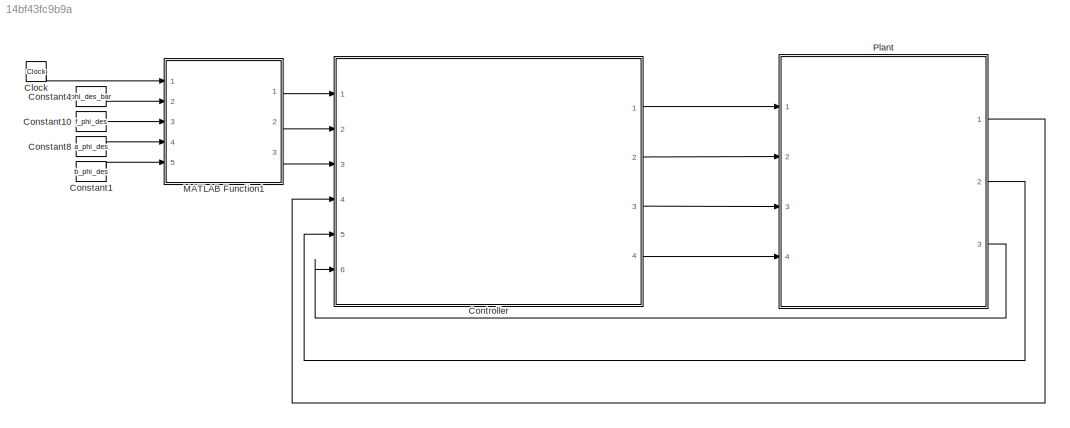
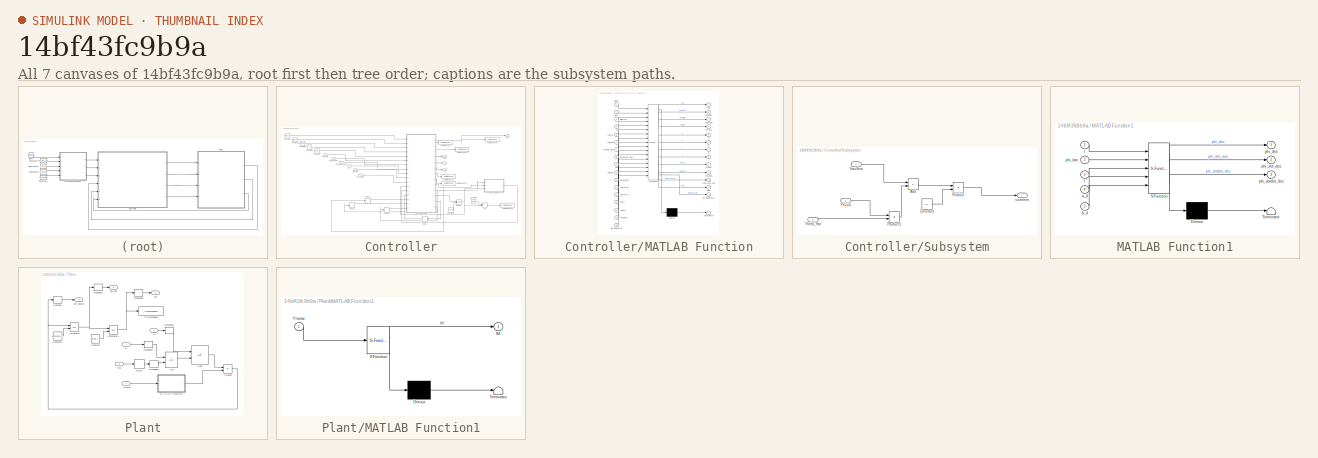
[diagram: thumbnail index - all 7 canvases of the model, root first then tree order]
MODEL slx_14bf43fc9b9a
KIND model
CONFIG AbsTol = auto
CONFIG EnableMultiTasking = off
CONFIG FixedStep = auto
CONFIG MaxStep = auto
CONFIG MinStep = auto
CONFIG RelTol = 1e-3
CONFIG SampleTimeConstraint = Unconstrained
CONFIG Solver = VariableStepAuto
CONFIG SolverName = VariableStepAuto
CONFIG StartTime = 0.0
CONFIG StopTime = 10.0
BLOCK [Clock] Clock
BLOCK [Constant] Constant1
  Value = b_phi_des
BLOCK [Constant] Constant10
  Value = f_phi_des
BLOCK [Constant] Constant4
  Value = phi_des_bar
BLOCK [Constant] Constant8
  Value = a_phi_des
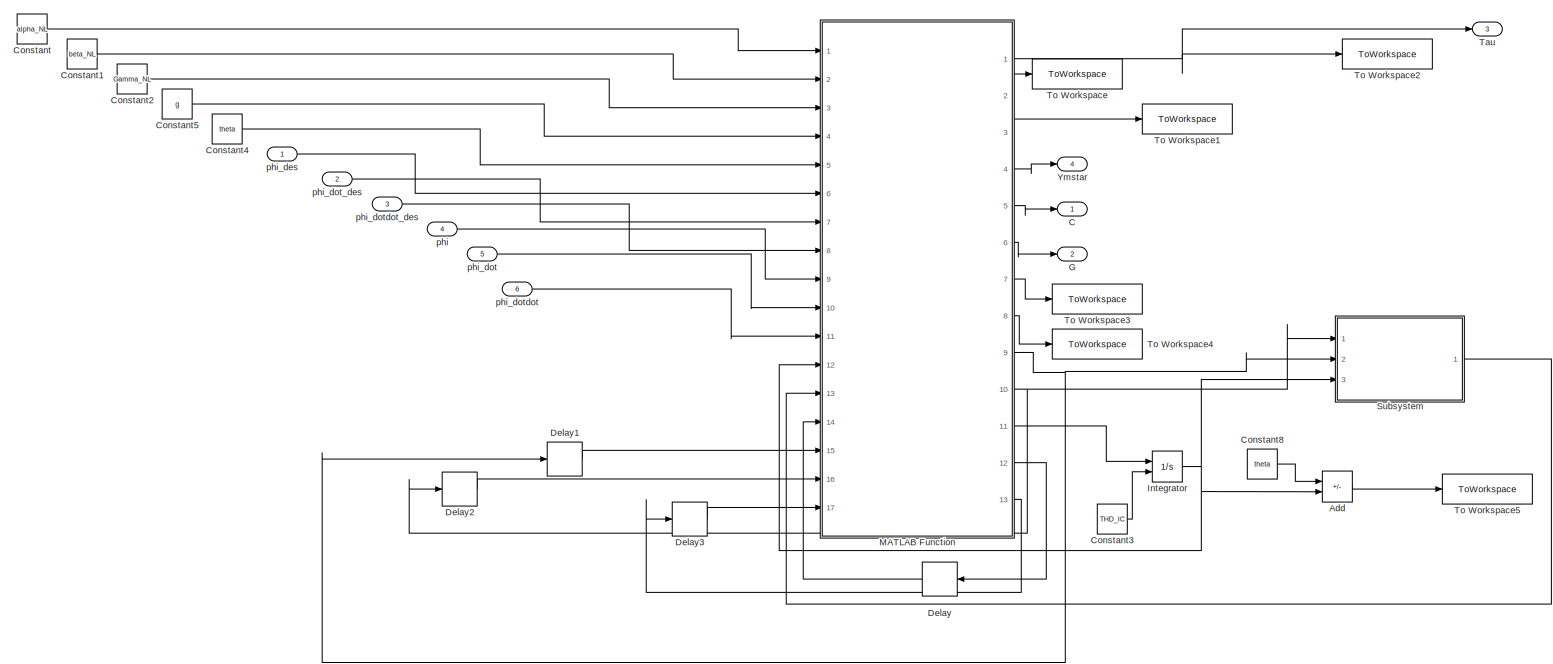
[diagram: Controller - part 1/1, most of the canvas]
BLOCK [SubSystem] Controller
  Ports = [6, 4]
  RequestExecContextInheritance = off
BLOCK [Sum] Controller/Add
  IconShape = rectangular
  Inputs = +-
  Ports = [2, 1]
BLOCK [Outport] Controller/C
BLOCK [Constant] Controller/Constant
  Value = alpha_NL
BLOCK [Constant] Controller/Constant1
  Value = beta_NL
BLOCK [Constant] Controller/Constant2
  Value = Gamma_NL
BLOCK [Constant] Controller/Constant3
  Value = THD_IC
BLOCK [Constant] Controller/Constant4
  Value = theta
BLOCK [Constant] Controller/Constant5
  Value = g
BLOCK [Constant] Controller/Constant8
  Value = theta
BLOCK [Delay] Controller/Delay
  DelayLength = 1
  InitialCondition = zeros(2,5,10)
  InputPortMap = u0
  Ports = [1, 1]
BLOCK [Delay] Controller/Delay1
  DelayLength = 1
  InitialCondition = zeros(5,5)
  InputPortMap = u0
  Ports = [1, 1]
BLOCK [Delay] Controller/Delay2
  DelayLength = 1
  InitialCondition = zeros(5,1)
  InputPortMap = u0
  Ports = [1, 1]
BLOCK [Delay] Controller/Delay3
  DelayLength = 1
  InitialCondition = 0
  InputPortMap = u0
  Ports = [1, 1]
BLOCK [Outport] Controller/G
  Port = 2
BLOCK [Integrator] Controller/Integrator
  InitialConditionSource = external
  Ports = [2, 1]
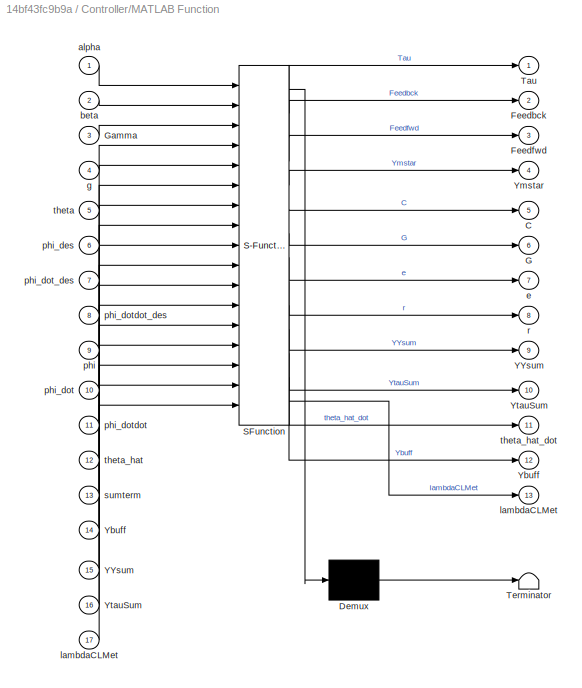
BLOCK [SubSystem] Controller/MATLAB Function
  ErrorFcn = Stateflow.Translate.translate
  PermitHierarchicalResolution = ExplicitOnly
  Ports = [17, 13]
  RequestExecContextInheritance = off
  SFBlockType = MATLAB Function
  TreatAsAtomicUnit = on
BLOCK [Demux] Controller/MATLAB Function/ Demux 
  Outputs = 1
  Ports = [1, 1]
BLOCK [S-Function] Controller/MATLAB Function/ SFunction 
  EnableBusSupport = on
  FunctionName = sf_sfun
  PortCounts = [17 14]
  Ports = [17, 14]
  SFcnIsStateOwnerBlock = off
  SFunctionDeploymentMode = off
  Tag = Stateflow S-Function 2
BLOCK [Terminator] Controller/MATLAB Function/ Terminator 
BLOCK [Outport] Controller/MATLAB Function/C
  Port = 5
BLOCK [Outport] Controller/MATLAB Function/Feedbck
  Port = 2
BLOCK [Outport] Controller/MATLAB Function/Feedfwd
  Port = 3
BLOCK [Outport] Controller/MATLAB Function/G
  Port = 6
BLOCK [Inport] Controller/MATLAB Function/Gamma
  Port = 3
BLOCK [Outport] Controller/MATLAB Function/Tau
BLOCK [Outport] Controller/MATLAB Function/YYsum
  Port = 9
BLOCK [Inport] Controller/MATLAB Function/YYsum 
  Port = 15
BLOCK [Outport] Controller/MATLAB Function/Ybuff
  Port = 12
BLOCK [Inport] Controller/MATLAB Function/Ybuff 
  Port = 14
BLOCK [Outport] Controller/MATLAB Function/Ymstar
  Port = 4
BLOCK [Outport] Controller/MATLAB Function/YtauSum
  Port = 10
BLOCK [Inport] Controller/MATLAB Function/YtauSum 
  Port = 16
BLOCK [Inport] Controller/MATLAB Function/alpha
BLOCK [Inport] Controller/MATLAB Function/beta
  Port = 2
BLOCK [Outport] Controller/MATLAB Function/e
  Port = 7
BLOCK [Inport] Controller/MATLAB Function/g
  Port = 4
BLOCK [Outport] Controller/MATLAB Function/lambdaCLMet
  Port = 13
BLOCK [Inport] Controller/MATLAB Function/lambdaCLMet 
  Port = 17
BLOCK [Inport] Controller/MATLAB Function/phi
  Port = 9
BLOCK [Inport] Controller/MATLAB Function/phi_des
  Port = 6
BLOCK [Inport] Controller/MATLAB Function/phi_dot
  Port = 10
BLOCK [Inport] Controller/MATLAB Function/phi_dot_des
  Port = 7
BLOCK [Inport] Controller/MATLAB Function/phi_dotdot
  Port = 11
BLOCK [Inport] Controller/MATLAB Function/phi_dotdot_des
  Port = 8
BLOCK [Outport] Controller/MATLAB Function/r
  Port = 8
BLOCK [Inport] Controller/MATLAB Function/sumterm
  Port = 13
BLOCK [Inport] Controller/MATLAB Function/theta
  Port = 5
BLOCK [Inport] Controller/MATLAB Function/theta_hat
  Port = 12
BLOCK [Outport] Controller/MATLAB Function/theta_hat_dot
  Port = 11
BLOCK [SubSystem] Controller/Subsystem
  Ports = [3, 1]
  RequestExecContextInheritance = off
BLOCK [Sum] Controller/Subsystem/Add
  IconShape = rectangular
  Inputs = +-
  Ports = [2, 1]
BLOCK [Constant] Controller/Subsystem/Constant
  Value = 0.1
BLOCK [Product] Controller/Subsystem/Product
  Multiplication = Matrix(*)
  Ports = [2, 1]
BLOCK [Product] Controller/Subsystem/Product1
  Multiplication = Matrix(*)
  Ports = [2, 1]
BLOCK [Inport] Controller/Subsystem/Theta_Hat
  Port = 3
  PortDimensions = [5,1]
BLOCK [Inport] Controller/Subsystem/YYsum
  Port = 2
  PortDimensions = [5,5]
BLOCK [Inport] Controller/Subsystem/YtauSum
BLOCK [Outport] Controller/Subsystem/sumterm
BLOCK [Outport] Controller/Tau
  Port = 3
BLOCK [ToWorkspace] Controller/To Workspace
  FixptAsFi = on
  MaxDataPoints = inf
  Ports = [1]
  SampleTime = -1
  SaveFormat = Timeseries
  VariableName = Feedbck
BLOCK [ToWorkspace] Controller/To Workspace1
  FixptAsFi = on
  MaxDataPoints = inf
  Ports = [1]
  SampleTime = -1
  SaveFormat = Timeseries
  VariableName = Feedfwd
BLOCK [ToWorkspace] Controller/To Workspace2
  FixptAsFi = on
  MaxDataPoints = inf
  Ports = [1]
  SampleTime = -1
  SaveFormat = Timeseries
  VariableName = Tau
BLOCK [ToWorkspace] Controller/To Workspace3
  FixptAsFi = on
  MaxDataPoints = inf
  Ports = [1]
  SampleTime = -1
  SaveFormat = Timeseries
  VariableName = e_nl
BLOCK [ToWorkspace] Controller/To Workspace4
  FixptAsFi = on
  MaxDataPoints = inf
  Ports = [1]
  SampleTime = -1
  SaveFormat = Timeseries
  VariableName = r_nl
BLOCK [ToWorkspace] Controller/To Workspace5
  FixptAsFi = on
  MaxDataPoints = inf
  Ports = [1]
  SampleTime = -1
  SaveFormat = Timeseries
  VariableName = theta_tilde
BLOCK [Outport] Controller/Ymstar
  Port = 4
BLOCK [Inport] Controller/phi
  Port = 4
BLOCK [Inport] Controller/phi_des
BLOCK [Inport] Controller/phi_dot
  Port = 5
BLOCK [Inport] Controller/phi_dot_des
  Port = 2
BLOCK [Inport] Controller/phi_dotdot
  Port = 6
BLOCK [Inport] Controller/phi_dotdot_des
  Port = 3
BLOCK [SubSystem] MATLAB Function1
  ErrorFcn = Stateflow.Translate.translate
  PermitHierarchicalResolution = ExplicitOnly
  Ports = [5, 3]
  RequestExecContextInheritance = off
  SFBlockType = MATLAB Function
  TreatAsAtomicUnit = on
BLOCK [Demux] MATLAB Function1/ Demux 
  Outputs = 1
  Ports = [1, 1]
BLOCK [S-Function] MATLAB Function1/ SFunction 
  EnableBusSupport = on
  FunctionName = sf_sfun
  PortCounts = [5 4]
  Ports = [5, 4]
  SFcnIsStateOwnerBlock = off
  SFunctionDeploymentMode = off
  Tag = Stateflow S-Function 3
BLOCK [Terminator] MATLAB Function1/ Terminator 
BLOCK [Inport] MATLAB Function1/a_d
  Port = 4
BLOCK [Inport] MATLAB Function1/b_d
  Port = 5
BLOCK [Inport] MATLAB Function1/f
  Port = 3
BLOCK [Inport] MATLAB Function1/phi_bar
  Port = 2
BLOCK [Outport] MATLAB Function1/phi_des
BLOCK [Outport] MATLAB Function1/phi_dot_des
  Port = 2
BLOCK [Outport] MATLAB Function1/phi_dotdot_des
  Port = 3
BLOCK [Inport] MATLAB Function1/t
BLOCK [SubSystem] Plant
  Ports = [4, 3]
  RequestExecContextInheritance = off
BLOCK [Sum] Plant/Add
  IconShape = rectangular
  Inputs = -+
  Ports = [2, 1]
BLOCK [Sum] Plant/Add1
  IconShape = rectangular
  Inputs = -+
  Ports = [2, 1]
BLOCK [Inport] Plant/C
BLOCK [Constant] Plant/Constant
  Value = phi_dot_IC
BLOCK [Constant] Plant/Constant1
  Value = phi_dotdot_IC
BLOCK [Delay] Plant/Delay
  DelayLength = 1
  InputPortMap = u0
  Ports = [1, 1]
BLOCK [Inport] Plant/G
  Port = 2
BLOCK [Integrator] Plant/Integrator
  InitialConditionSource = external
  Ports = [2, 1]
BLOCK [Integrator] Plant/Integrator1
  InitialConditionSource = external
  Ports = [2, 1]
BLOCK [SubSystem] Plant/MATLAB Function1
  ErrorFcn = Stateflow.Translate.translate
  PermitHierarchicalResolution = ExplicitOnly
  Ports = [1, 1]
  RequestExecContextInheritance = off
  SFBlockType = MATLAB Function
  TreatAsAtomicUnit = on
BLOCK [Demux] Plant/MATLAB Function1/ Demux 
  Outputs = 1
  Ports = [1, 1]
BLOCK [S-Function] Plant/MATLAB Function1/ SFunction 
  EnableBusSupport = on
  FunctionName = sf_sfun
  PortCounts = [1 2]
  Ports = [1, 2]
  SFcnIsStateOwnerBlock = off
  SFunctionDeploymentMode = off
  Tag = Stateflow S-Function 4
BLOCK [Terminator] Plant/MATLAB Function1/ Terminator 
BLOCK [Outport] Plant/MATLAB Function1/IM
BLOCK [Inport] Plant/MATLAB Function1/Ymstar
BLOCK [Product] Plant/Product
  Multiplication = Matrix(*)
  Ports = [2, 1]
BLOCK [Reshape] Plant/Reshape
  Ports = [1, 1]
BLOCK [Reshape] Plant/Reshape1
  Ports = [1, 1]
BLOCK [Reshape] Plant/Reshape2
  Ports = [1, 1]
BLOCK [Reshape] Plant/Reshape3
  Ports = [1, 1]
BLOCK [Reshape] Plant/Reshape4
  Ports = [1, 1]
BLOCK [Reshape] Plant/Reshape5
  Ports = [1, 1]
BLOCK [Inport] Plant/Tau
  Port = 3
BLOCK [ToWorkspace] Plant/To Workspace
  FixptAsFi = on
  MaxDataPoints = inf
  Ports = [1]
  SampleTime = -1
  SaveFormat = Timeseries
  VariableName = phi_t
BLOCK [Inport] Plant/Ymstar
  Port = 4
BLOCK [Outport] Plant/phi
BLOCK [Outport] Plant/phi_dot
  Port = 2
BLOCK [Outport] Plant/phi_dotdot
  Port = 3
LINE Clock:1 -> MATLAB Function1:1
LINE Constant10:1 -> MATLAB Function1:3
LINE Constant1:1 -> MATLAB Function1:5
LINE Constant4:1 -> MATLAB Function1:2
LINE Constant8:1 -> MATLAB Function1:4
LINE Controller/Add:1 -> Controller/To Workspace5:1
LINE Controller/Constant1:1 -> Controller/MATLAB Function:2
LINE Controller/Constant2:1 -> Controller/MATLAB Function:3
LINE Controller/Constant3:1 -> Controller/Integrator:2
LINE Controller/Constant4:1 -> Controller/MATLAB Function:5
LINE Controller/Constant5:1 -> Controller/MATLAB Function:4
LINE Controller/Constant8:1 -> Controller/Add:1
LINE Controller/Constant:1 -> Controller/MATLAB Function:1
LINE Controller/Delay1:1 -> Controller/MATLAB Function:15
LINE Controller/Delay2:1 -> Controller/MATLAB Function:16
LINE Controller/Delay3:1 -> Controller/MATLAB Function:17
LINE Controller/Delay:1 -> Controller/MATLAB Function:14
NET Controller/Integrator:1 -> Controller/Add:2, Controller/MATLAB Function:12, Controller/Subsystem:3
NET Controller/MATLAB Function:1 -> Controller/Tau:1, Controller/To Workspace2:1
NET Controller/MATLAB Function:10 -> Controller/Delay2:1, Controller/Subsystem:1
LINE Controller/MATLAB Function:11 -> Controller/Integrator:1
LINE Controller/MATLAB Function:12 -> Controller/Delay:1
LINE Controller/MATLAB Function:13 -> Controller/Delay3:1
LINE Controller/MATLAB Function:2 -> Controller/To Workspace:1
LINE Controller/MATLAB Function:3 -> Controller/To Workspace1:1
LINE Controller/MATLAB Function:4 -> Controller/Ymstar:1
LINE Controller/MATLAB Function:5 -> Controller/C:1
LINE Controller/MATLAB Function:6 -> Controller/G:1
LINE Controller/MATLAB Function:7 -> Controller/To Workspace3:1
LINE Controller/MATLAB Function:8 -> Controller/To Workspace4:1
NET Controller/MATLAB Function:9 -> Controller/Delay1:1, Controller/Subsystem:2
LINE Controller/Subsystem/Add:1 -> Controller/Subsystem/Product:1
LINE Controller/Subsystem/Constant:1 -> Controller/Subsystem/Product:2
LINE Controller/Subsystem/Product1:1 -> Controller/Subsystem/Add:2
LINE Controller/Subsystem/Product:1 -> Controller/Subsystem/sumterm:1
LINE Controller/Subsystem/Theta_Hat:1 -> Controller/Subsystem/Product1:2
LINE Controller/Subsystem/YYsum:1 -> Controller/Subsystem/Product1:1
LINE Controller/Subsystem/YtauSum:1 -> Controller/Subsystem/Add:1
LINE Controller/Subsystem:1 -> Controller/MATLAB Function:13
LINE Controller/phi:1 -> Controller/MATLAB Function:9
LINE Controller/phi_des:1 -> Controller/MATLAB Function:6
LINE Controller/phi_dot:1 -> Controller/MATLAB Function:10
LINE Controller/phi_dot_des:1 -> Controller/MATLAB Function:7
LINE Controller/phi_dotdot:1 -> Controller/MATLAB Function:11
LINE Controller/phi_dotdot_des:1 -> Controller/MATLAB Function:8
LINE Controller:1 -> Plant:1
LINE Controller:2 -> Plant:2
LINE Controller:3 -> Plant:3
LINE Controller:4 -> Plant:4
LINE MATLAB Function1:1 -> Controller:1
LINE MATLAB Function1:2 -> Controller:2
LINE MATLAB Function1:3 -> Controller:3
LINE Plant/Add1:1 -> Plant/Product:1
LINE Plant/Add:1 -> Plant/Add1:2
LINE Plant/C:1 -> Plant/Reshape4:1
LINE Plant/Constant1:1 -> Plant/Integrator:2
LINE Plant/Constant:1 -> Plant/Integrator1:2
LINE Plant/Delay:1 -> Plant/Reshape3:1
LINE Plant/G:1 -> Plant/Reshape5:1
NET Plant/Integrator1:1 -> Plant/Reshape2:1, Plant/To Workspace:1
NET Plant/Integrator:1 -> Plant/Integrator1:1, Plant/Reshape1:1
LINE Plant/MATLAB Function1:1 -> Plant/Product:2
NET Plant/Product:1 -> Plant/Integrator:1, Plant/Reshape:1
LINE Plant/Reshape1:1 -> Plant/phi_dot:1
LINE Plant/Reshape2:1 -> Plant/phi:1
LINE Plant/Reshape3:1 -> Plant/Add:2
LINE Plant/Reshape4:1 -> Plant/Add:1
LINE Plant/Reshape5:1 -> Plant/Add1:1
LINE Plant/Reshape:1 -> Plant/phi_dotdot:1
LINE Plant/Tau:1 -> Plant/Delay:1
LINE Plant/Ymstar:1 -> Plant/MATLAB Function1:1
LINE Plant:1 -> Controller:4
LINE Plant:2 -> Controller:5
LINE Plant:3 -> Controller:6
note: NET lines group one-source signal fan-out (src -> all destinations, sorted); 1:1 wires keep LINE
CHART Controller/MATLAB Function states=1 transitions=1
  STATE_LABEL 'eML_blk_kernel()'
  STATE_LABEL 'SCRIPT:\nfunction [Tau, Feedbck, Feedfwd, Ymstar, C, G, e, r, YYsum, YtauSum, theta_hat_dot, Ybuff, lambdaCLMet] = fcn(alpha, beta, Gamma, g, theta, phi_des, phi_dot_des, phi_dotdot_des, phi, phi_dot, phi_dotdot, theta_hat, sumterm, Ybuff, YYsum, YtauSum, lambdaCLMet)\nfunction [Tau, Feedbck, Feedfwd, Ymstar, C, G, e, r, YYsum, YtauSum, theta_hat_dot, Ybuff, lambdaCLMet] = fcn(alpha, beta, Gamma, g,...<+2426ch>'
CHART MATLAB Function1 states=1 transitions=1
  STATE_LABEL 'eML_blk_kernel()'
  STATE_LABEL 'SCRIPT:\n% function [phi_des, phi_dot_des, phi_dotdot_des]= fcn(t,phi_des_bar, f_phi_des, a_phi_des, b_phi_des)\n% phi_des = [phi_des_bar(1)*sin(2*pi*f_phi_des*t - a_phi_des)- b_phi_des(1); phi_des_bar(2)*sin(2*pi*f_phi_des*t - a_phi_des)+ b_phi_des(2)];\n% phi_dot_des = [2*pi*f_phi_des*phi_des_bar(1)*cos(2*pi*f_phi_des*t - a_phi_des); 2*pi*f_phi_des*phi_des_bar(2)*cos(2*pi*f_phi_des*t - a_phi_des)];...<+570ch>'
CHART Plant/MATLAB Function1 states=1 transitions=1
  STATE_LABEL 'eML_blk_kernel()'
  STATE_LABEL 'SCRIPT:\nfunction IM = fcn( Ymstar)\nIM = inv(Ymstar);\n\n\n'
